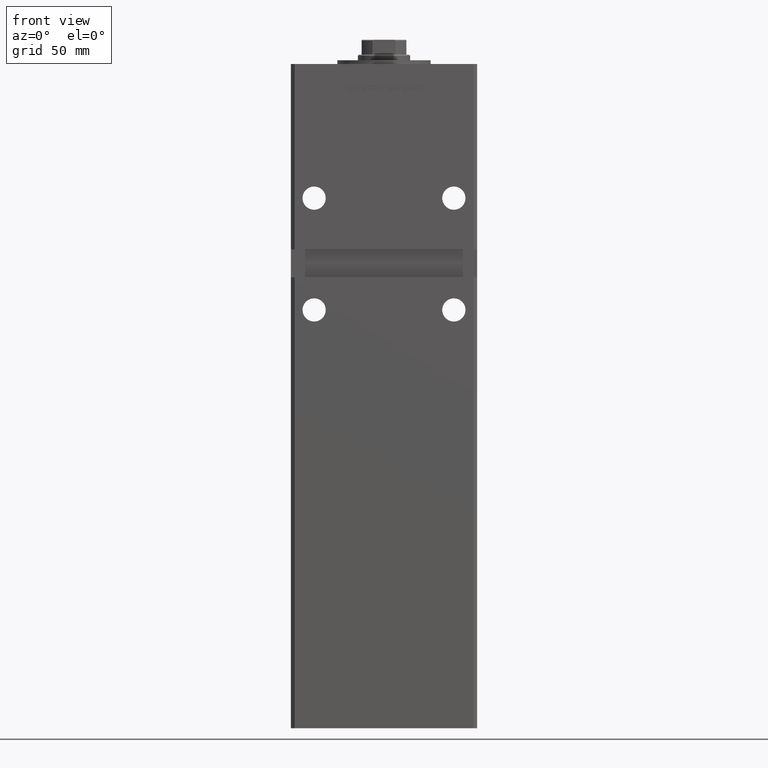
[diagram: clean part render]
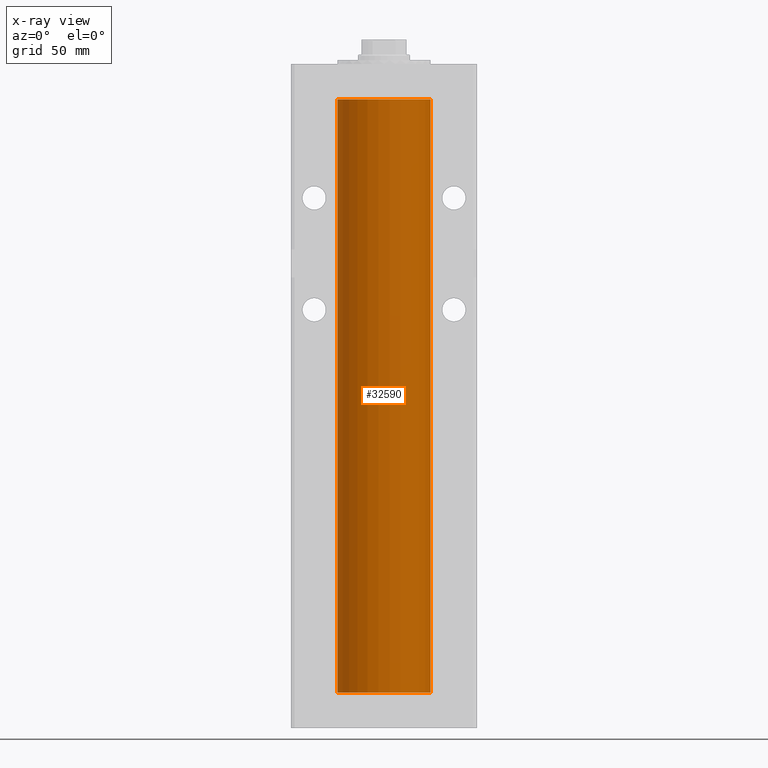
[diagram: x-ray — body ghosted, one internal face saturated and labeled with its STEP entity id]
A machine part, front view, then the same camera in x-ray: the body is ghosted and one INTERNAL B-rep face — a face not visible from any outside direction — is saturated and labeled: STEP entity #32590.
In plain terms, the highlighted cylindrical surface (partial cylindrical patch) has radius 25 mm, axis along (-0, -0, -1).
Its self-contained STEP definition (entity closure, byte-faithful):
#3177 = ORIENTED_EDGE ( 'NONE', *, *, #28803, .F. ) ;
#3758 = EDGE_CURVE ( 'NONE', #23847, #31623, #31147, .T. ) ;
#4009 = AXIS2_PLACEMENT_3D ( 'NONE', #41479, #46279, #5468 ) ;
#4796 = VECTOR ( 'NONE', #33253, 1000.000000000000000 ) ;
#5468 = DIRECTION ( 'NONE',  ( -1.000000000000000000, 0.000000000000000000, 0.000000000000000000 ) ) ;
#5881 = DIRECTION ( 'NONE',  ( -0.000000000000000000, -0.000000000000000000, -1.000000000000000000 ) ) ;
#6413 = CARTESIAN_POINT ( 'NONE',  ( 25.00000000000000000, 3.061616997868383043E-15, 318.5000000000000000 ) ) ;
#9853 = VERTEX_POINT ( 'NONE', #48674 ) ;
#12633 = CARTESIAN_POINT ( 'NONE',  ( 0.000000000000000000, 0.000000000000000000, 318.5000000000000000 ) ) ;
#14488 = DIRECTION ( 'NONE',  ( -0.000000000000000000, 0.000000000000000000, 1.000000000000000000 ) ) ;
#17079 = ORIENTED_EDGE ( 'NONE', *, *, #22540, .F. ) ;
#17155 = DIRECTION ( 'NONE',  ( -0.000000000000000000, 0.000000000000000000, 1.000000000000000000 ) ) ;
#22540 = EDGE_CURVE ( 'NONE', #9853, #31623, #52710, .T. ) ;
#23847 = VERTEX_POINT ( 'NONE', #44973 ) ;
#24970 = CARTESIAN_POINT ( 'NONE',  ( 25.00000000000000000, 3.061616997868383043E-15, 0.000000000000000000 ) ) ;
#26375 = AXIS2_PLACEMENT_3D ( 'NONE', #12633, #14488, #26872 ) ;
#26872 = DIRECTION ( 'NONE',  ( 1.000000000000000000, 0.000000000000000000, 0.000000000000000000 ) ) ;
#28425 = CARTESIAN_POINT ( 'NONE',  ( -25.00000000000000000, 0.000000000000000000, 318.5000000000000000 ) ) ;
#28803 = EDGE_CURVE ( 'NONE', #49612, #9853, #41043, .T. ) ;
#29108 = EDGE_CURVE ( 'NONE', #49612, #23847, #37403, .T. ) ;
#29569 = AXIS2_PLACEMENT_3D ( 'NONE', #49120, #17155, #45067 ) ;
#31147 = LINE ( 'NONE', #6413, #52162 ) ;
#31623 = VERTEX_POINT ( 'NONE', #24970 ) ;
#32233 = CARTESIAN_POINT ( 'NONE',  ( -25.00000000000000000, 0.000000000000000000, 318.5000000000000000 ) ) ;
#32590 = ADVANCED_FACE ( 'NONE', ( #42276 ), #37446, .F. ) ;
#33253 = DIRECTION ( 'NONE',  ( -0.000000000000000000, -0.000000000000000000, -1.000000000000000000 ) ) ;
#37403 = CIRCLE ( 'NONE', #26375, 25.00000000000000000 ) ;
#37446 = CYLINDRICAL_SURFACE ( 'NONE', #4009, 25.00000000000000000 ) ;
#41043 = LINE ( 'NONE', #28425, #4796 ) ;
#41479 = CARTESIAN_POINT ( 'NONE',  ( 0.000000000000000000, 0.000000000000000000, 318.5000000000000000 ) ) ;
#42276 = FACE_OUTER_BOUND ( 'NONE', #43645, .T. ) ;
#42308 = ORIENTED_EDGE ( 'NONE', *, *, #29108, .T. ) ;
#43645 = EDGE_LOOP ( 'NONE', ( #42308, #50840, #17079, #3177 ) ) ;
#44973 = CARTESIAN_POINT ( 'NONE',  ( 25.00000000000000000, 3.061616997868383043E-15, 318.5000000000000000 ) ) ;
#45067 = DIRECTION ( 'NONE',  ( 1.000000000000000000, 0.000000000000000000, 0.000000000000000000 ) ) ;
#46279 = DIRECTION ( 'NONE',  ( -0.000000000000000000, -0.000000000000000000, -1.000000000000000000 ) ) ;
#48674 = CARTESIAN_POINT ( 'NONE',  ( -25.00000000000000000, 0.000000000000000000, 0.000000000000000000 ) ) ;
#49120 = CARTESIAN_POINT ( 'NONE',  ( 0.000000000000000000, 0.000000000000000000, 0.000000000000000000 ) ) ;
#49612 = VERTEX_POINT ( 'NONE', #32233 ) ;
#50840 = ORIENTED_EDGE ( 'NONE', *, *, #3758, .T. ) ;
#52162 = VECTOR ( 'NONE', #5881, 1000.000000000000000 ) ;
#52710 = CIRCLE ( 'NONE', #29569, 25.00000000000000000 ) ;